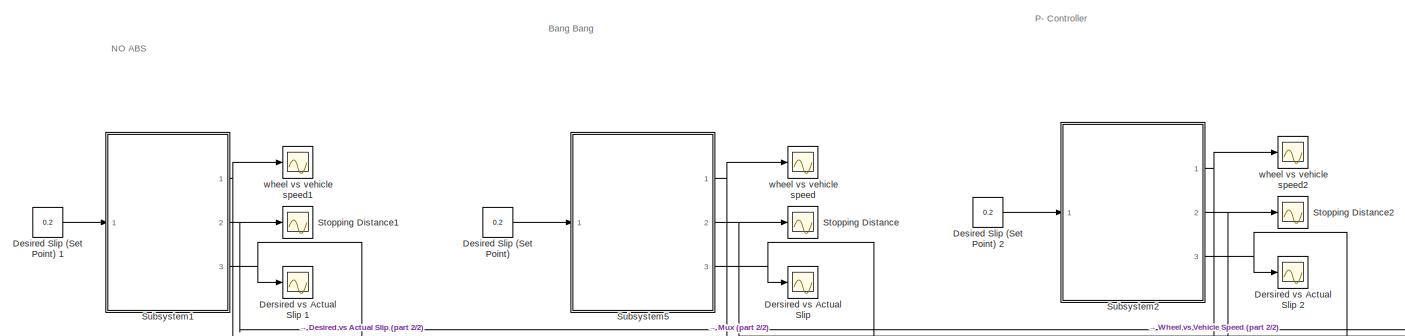
[diagram: root canvas - part 1/2, top left region]
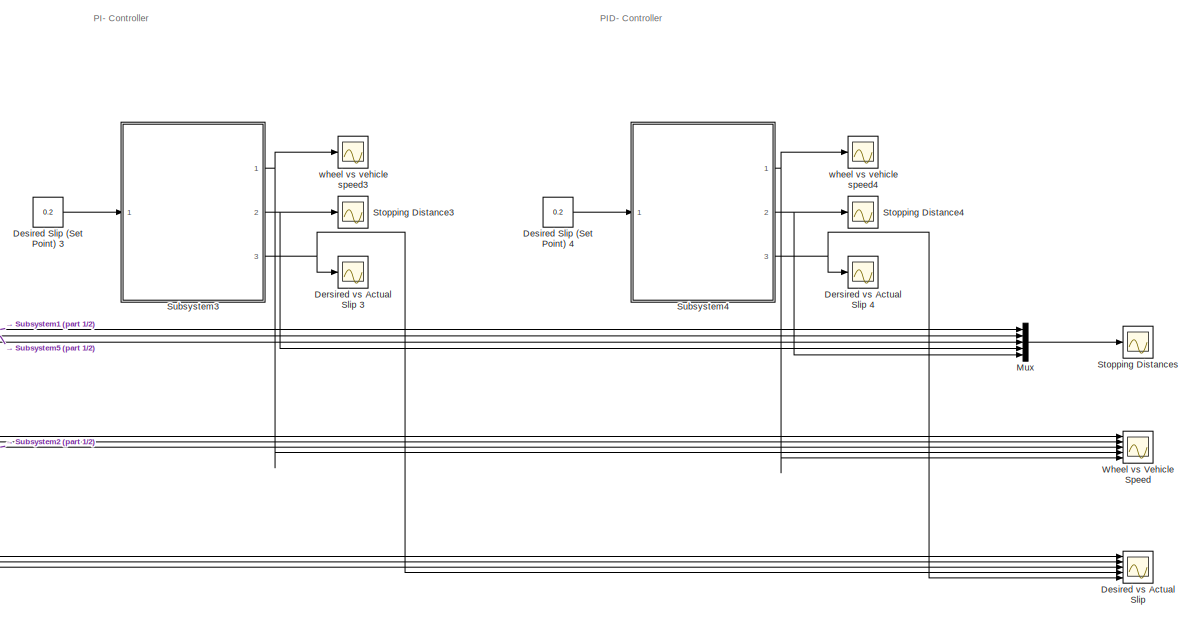
[diagram: root canvas - part 2/2, right side, full height]
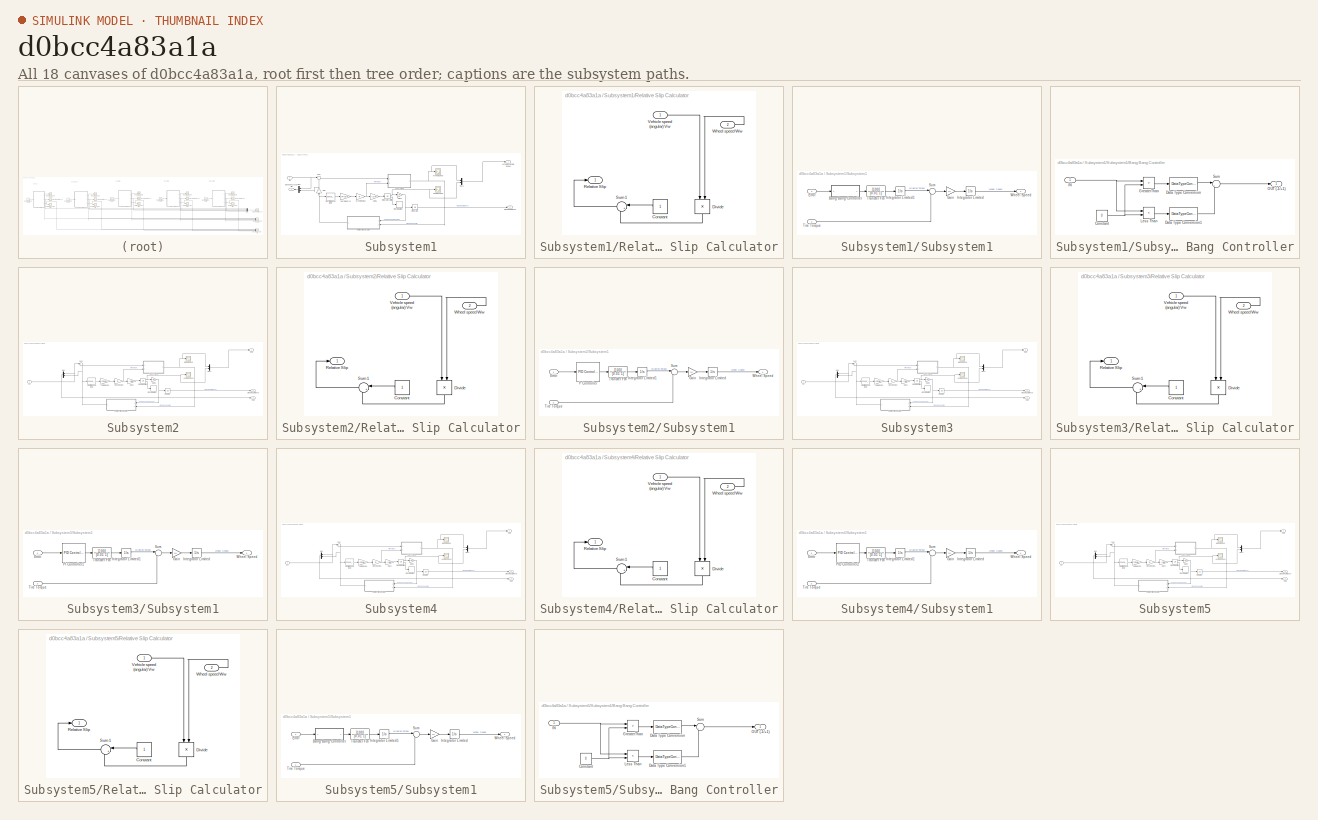
[diagram: thumbnail index - all 18 canvases of the model, root first then tree order]
MODEL slx_d0bcc4a83a1a
KIND model
CONFIG AbsTol = auto
CONFIG EnableMultiTasking = off
CONFIG FixedStep = auto
CONFIG MaxStep = auto
CONFIG MinStep = auto
CONFIG RelTol = 1e-3
CONFIG SampleTimeConstraint = Unconstrained
CONFIG Solver = ode23t
CONFIG SolverName = ode23t
CONFIG StartTime = 0.0
CONFIG StopTime = 20
BLOCK [Scope] Dersired vs Actual Slip 
  Floating = off
  NumInputPorts = 1
  Ports = [1]
  ScopeSpecificationString = Simulink.scopes.TimeScopeBlockCfg('CurrentConfiguration', extmgr.ConfigurationSet(extmgr.Configuration('Core','General UI',true),extmgr.Configuration('Core','Source UI',true),extmgr.Configuration('Sources','WiredSimulink',true,'DataLoggingVariableName','ScopeData1'),extmgr.Configuration('Visuals','Time Domain',true,'SerializedDisplays',{struct('MinYLimReal','-0.125','MaxYLimReal','1.125','YLabelRe...<+1446ch>
BLOCK [Scope] Dersired vs Actual Slip 1
  Floating = off
  NumInputPorts = 1
  Ports = [1]
  ScopeSpecificationString = Simulink.scopes.TimeScopeBlockCfg('CurrentConfiguration', extmgr.ConfigurationSet(extmgr.Configuration('Core','General UI',true),extmgr.Configuration('Core','Source UI',true),extmgr.Configuration('Sources','WiredSimulink',true,'DataLoggingVariableName','ScopeData1'),extmgr.Configuration('Visuals','Time Domain',true,'SerializedDisplays',{struct('MinYLimReal','-0.025','MaxYLimReal','0.225','YLabelRe...<+1446ch>
BLOCK [Scope] Dersired vs Actual Slip 2
  Floating = off
  NumInputPorts = 1
  Ports = [1]
  ScopeSpecificationString = Simulink.scopes.TimeScopeBlockCfg('CurrentConfiguration', extmgr.ConfigurationSet(extmgr.Configuration('Core','General UI',true),extmgr.Configuration('Core','Source UI',true),extmgr.Configuration('Sources','WiredSimulink',true,'DataLoggingVariableName','ScopeData4'),extmgr.Configuration('Visuals','Time Domain',true,'SerializedDisplays',{struct('MinYLimReal','-1.26905','MaxYLimReal','1.25212','YLab...<+1458ch>
BLOCK [Scope] Dersired vs Actual Slip 3
  Floating = off
  NumInputPorts = 1
  Ports = [1]
  ScopeSpecificationString = Simulink.scopes.TimeScopeBlockCfg('CurrentConfiguration', extmgr.ConfigurationSet(extmgr.Configuration('Core','General UI',true),extmgr.Configuration('Core','Source UI',true),extmgr.Configuration('Sources','WiredSimulink',true,'DataLoggingVariableName','ScopeData7'),extmgr.Configuration('Visuals','Time Domain',true,'SerializedDisplays',{struct('MinYLimReal','-0.06837','MaxYLimReal','0.61535','YLab...<+1458ch>
BLOCK [Scope] Dersired vs Actual Slip 4
  Floating = off
  NumInputPorts = 1
  Ports = [1]
  ScopeSpecificationString = Simulink.scopes.TimeScopeBlockCfg('CurrentConfiguration', extmgr.ConfigurationSet(extmgr.Configuration('Core','General UI',true),extmgr.Configuration('Core','Source UI',true),extmgr.Configuration('Sources','WiredSimulink',true,'DataLoggingVariableName','ScopeData10'),extmgr.Configuration('Visuals','Time Domain',true,'SerializedDisplays',{struct('MinYLimReal','-0.06837','MaxYLimReal','0.61535','YLa...<+1459ch>
BLOCK [Constant] Desired Slip (Set Point) 
  Value = 0.2
BLOCK [Constant] Desired Slip (Set Point) 1
  Value = 0.2
BLOCK [Constant] Desired Slip (Set Point) 2
  Value = 0.2
BLOCK [Constant] Desired Slip (Set Point) 3
  Value = 0.2
BLOCK [Constant] Desired Slip (Set Point) 4
  Value = 0.2
BLOCK [Scope] Desired vs Actual Slip
  Floating = off
  NumInputPorts = 5
  Ports = [5]
  ScopeSpecificationString = Simulink.scopes.TimeScopeBlockCfg('CurrentConfiguration', extmgr.ConfigurationSet(extmgr.Configuration('Core','General UI',true),extmgr.Configuration('Core','Source UI',true),extmgr.Configuration('Sources','WiredSimulink',true,'DataLoggingVariableName','ScopeData15'),extmgr.Configuration('Visuals','Time Domain',true,'SerializedDisplays',{struct('MinYLimReal','-0.025','MaxYLimReal','0.225','YLabelR...<+6258ch>
BLOCK [Mux] Mux
  DisplayOption = bar
  Inputs = 5
  Ports = [5, 1]
BLOCK [Scope] Stopping Distance
  Floating = off
  NumInputPorts = 1
  Ports = [1]
  ScopeSpecificationString = Simulink.scopes.TimeScopeBlockCfg('CurrentConfiguration', extmgr.ConfigurationSet(extmgr.Configuration('Core','General UI',true),extmgr.Configuration('Core','Source UI',true),extmgr.Configuration('Sources','WiredSimulink',true),extmgr.Configuration('Visuals','Time Domain',true,'SerializedDisplays',{struct('MinYLimReal','-37.79808','MaxYLimReal','340.18268','YLabelReal','','MinYLimMag','0.00000','M...<+1415ch>
BLOCK [Scope] Stopping Distance1
  Floating = off
  NumInputPorts = 1
  Ports = [1]
  ScopeSpecificationString = Simulink.scopes.TimeScopeBlockCfg('CurrentConfiguration', extmgr.ConfigurationSet(extmgr.Configuration('Core','General UI',true),extmgr.Configuration('Core','Source UI',true),extmgr.Configuration('Sources','WiredSimulink',true,'DataLoggingVariableName','ScopeData2'),extmgr.Configuration('Visuals','Time Domain',true,'SerializedDisplays',{struct('MinYLimReal','-558.91159','MaxYLimReal','5030.20434',...<+1473ch>
BLOCK [Scope] Stopping Distance2
  Floating = off
  NumInputPorts = 1
  Ports = [1]
  ScopeSpecificationString = Simulink.scopes.TimeScopeBlockCfg('CurrentConfiguration', extmgr.ConfigurationSet(extmgr.Configuration('Core','General UI',true),extmgr.Configuration('Core','Source UI',true),extmgr.Configuration('Sources','WiredSimulink',true,'DataLoggingVariableName','ScopeData5'),extmgr.Configuration('Visuals','Time Domain',true,'SerializedDisplays',{struct('MinYLimReal','-37.79808','MaxYLimReal','340.18268','Y...<+1454ch>
BLOCK [Scope] Stopping Distance3
  Floating = off
  NumInputPorts = 1
  Ports = [1]
  ScopeSpecificationString = Simulink.scopes.TimeScopeBlockCfg('CurrentConfiguration', extmgr.ConfigurationSet(extmgr.Configuration('Core','General UI',true),extmgr.Configuration('Core','Source UI',true),extmgr.Configuration('Sources','WiredSimulink',true,'DataLoggingVariableName','ScopeData8'),extmgr.Configuration('Visuals','Time Domain',true,'SerializedDisplays',{struct('MinYLimReal','-37.79808','MaxYLimReal','340.18268','Y...<+1454ch>
BLOCK [Scope] Stopping Distance4
  Floating = off
  NumInputPorts = 1
  Ports = [1]
  ScopeSpecificationString = Simulink.scopes.TimeScopeBlockCfg('CurrentConfiguration', extmgr.ConfigurationSet(extmgr.Configuration('Core','General UI',true),extmgr.Configuration('Core','Source UI',true),extmgr.Configuration('Sources','WiredSimulink',true,'DataLoggingVariableName','ScopeData11'),extmgr.Configuration('Visuals','Time Domain',true,'SerializedDisplays',{struct('MinYLimReal','-37.79808','MaxYLimReal','340.18268','...<+1455ch>
BLOCK [Scope] Stopping Distances
  Floating = off
  NumInputPorts = 1
  Ports = [1]
  ScopeSpecificationString = Simulink.scopes.TimeScopeBlockCfg('CurrentConfiguration', extmgr.ConfigurationSet(extmgr.Configuration('Core','General UI',true),extmgr.Configuration('Core','Source UI',true),extmgr.Configuration('Sources','WiredSimulink',true,'DataLoggingVariableName','ScopeData13'),extmgr.Configuration('Visuals','Time Domain',true,'SerializedDisplays',{struct('MinYLimReal','-557.93407','MaxYLimReal','5021.40662'...<+1642ch>
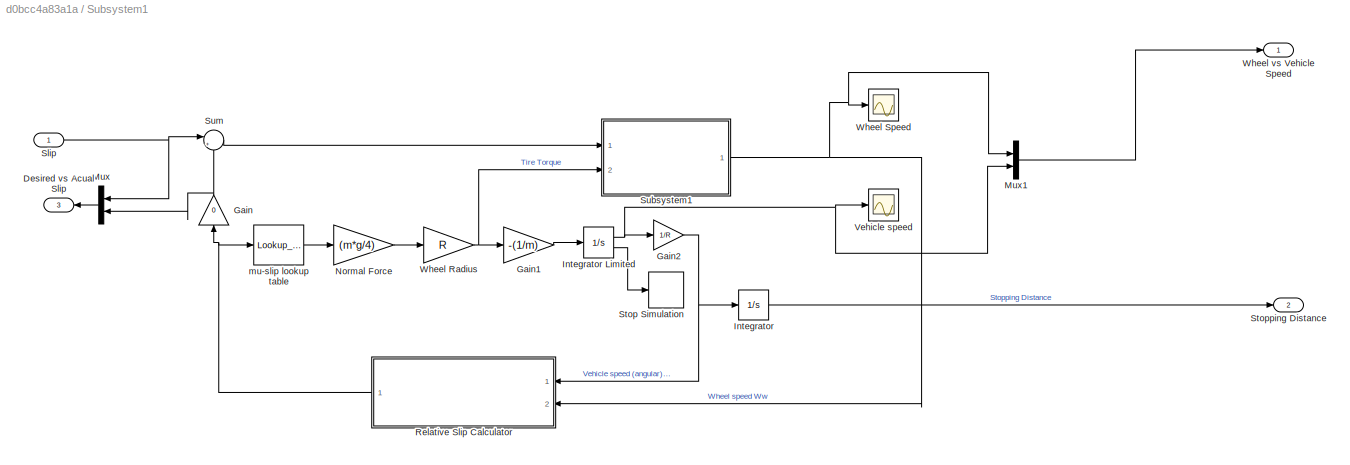
BLOCK [SubSystem] Subsystem1
  Ports = [1, 3]
  RequestExecContextInheritance = off
BLOCK [Outport] Subsystem1/Desired vs Acual Slip
  IconDisplay = Port number
  Port = 3
BLOCK [Gain] Subsystem1/Gain
  Gain = 0
  OutDataTypeStr = Inherit: Inherit via internal rule
  ParamDataTypeStr = Inherit: Inherit via internal rule
  SaturateOnIntegerOverflow = off
BLOCK [Gain] Subsystem1/Gain1
  Gain = -(1/m)
  OutDataTypeStr = Inherit: Inherit via internal rule
  ParamDataTypeStr = Inherit: Inherit via internal rule
  SaturateOnIntegerOverflow = off
BLOCK [Gain] Subsystem1/Gain2
  Gain = 1/R
  OutDataTypeStr = Inherit: Inherit via internal rule
  ParamDataTypeStr = Inherit: Inherit via internal rule
  SaturateOnIntegerOverflow = off
BLOCK [Integrator] Subsystem1/Integrator
  Ports = [1, 1]
BLOCK [Integrator] Subsystem1/Integrator Limited
  InitialCondition = v0
  LimitOutput = on
  LowerSaturationLimit = 0
  Ports = [1, 2]
  ShowSaturationPort = on
  UpperSaturationLimit = 1000
BLOCK [Mux] Subsystem1/Mux
  DisplayOption = bar
  Inputs = 2
  Ports = [2, 1]
BLOCK [Mux] Subsystem1/Mux1
  DisplayOption = bar
  Inputs = 2
  Ports = [2, 1]
BLOCK [Gain] Subsystem1/Normal Force
  Gain = (m*g/4)
  OutDataTypeStr = Inherit: Inherit via internal rule
  ParamDataTypeStr = Inherit: Inherit via internal rule
  SaturateOnIntegerOverflow = off
BLOCK [SubSystem] Subsystem1/Relative Slip Calculator
  Ports = [2, 1]
  RequestExecContextInheritance = off
BLOCK [Constant] Subsystem1/Relative Slip Calculator/Constant
BLOCK [Product] Subsystem1/Relative Slip Calculator/Divide
  InputSameDT = off
  Inputs = /*
  OutDataTypeStr = Inherit: Inherit via internal rule
  Ports = [2, 1]
  RndMeth = Floor
  SaturateOnIntegerOverflow = off
BLOCK [Outport] Subsystem1/Relative Slip Calculator/Relative Slip
  IconDisplay = Port number
BLOCK [Sum] Subsystem1/Relative Slip Calculator/Sum1
  IconShape = round
  InputSameDT = off
  Inputs = |+-
  OutDataTypeStr = Inherit: Inherit via internal rule
  Ports = [2, 1]
  SaturateOnIntegerOverflow = off
BLOCK [Inport] Subsystem1/Relative Slip Calculator/Vehicle speed (angular) Vw
  IconDisplay = Port number
BLOCK [Inport] Subsystem1/Relative Slip Calculator/Wheel speed Ww
  IconDisplay = Port number
  Port = 2
BLOCK [Inport] Subsystem1/Slip
  IconDisplay = Port number
BLOCK [Stop] Subsystem1/Stop Simulation
BLOCK [Outport] Subsystem1/Stopping Distance
  IconDisplay = Port number
  Port = 2
BLOCK [SubSystem] Subsystem1/Subsystem1
  Ports = [2, 1]
  RequestExecContextInheritance = off
BLOCK [SubSystem] Subsystem1/Subsystem1/Bang Bang Controller
  Ports = [1, 1]
  RequestExecContextInheritance = off
BLOCK [Constant] Subsystem1/Subsystem1/Bang Bang Controller/Constant
  Value = 0
BLOCK [DataTypeConversion] Subsystem1/Subsystem1/Bang Bang Controller/Data Type Conversion
  OutDataTypeStr = double
  SaturateOnIntegerOverflow = off
BLOCK [DataTypeConversion] Subsystem1/Subsystem1/Bang Bang Controller/Data Type Conversion1
  OutDataTypeStr = double
  SaturateOnIntegerOverflow = off
BLOCK [RelationalOperator] Subsystem1/Subsystem1/Bang Bang Controller/GreaterThan
  InputSameDT = off
  Operator = >
  OutDataTypeStr = boolean
  Ports = [2, 1]
  RndMeth = Simplest
BLOCK [Inport] Subsystem1/Subsystem1/Bang Bang Controller/IN
  IconDisplay = Port number
BLOCK [RelationalOperator] Subsystem1/Subsystem1/Bang Bang Controller/Less Than
  InputSameDT = off
  Operator = <
  OutDataTypeStr = boolean
  Ports = [2, 1]
  RndMeth = Simplest
BLOCK [Outport] Subsystem1/Subsystem1/Bang Bang Controller/OUT (-1//+1)
  IconDisplay = Port number
BLOCK [Sum] Subsystem1/Subsystem1/Bang Bang Controller/Sum
  IconShape = round
  InputSameDT = off
  Inputs = |+-
  OutDataTypeStr = Inherit: Inherit via internal rule
  Ports = [2, 1]
  SaturateOnIntegerOverflow = off
BLOCK [Inport] Subsystem1/Subsystem1/Error
  IconDisplay = Port number
BLOCK [Gain] Subsystem1/Subsystem1/Gain
  Gain = 1/I
  OutDataTypeStr = Inherit: Inherit via internal rule
  ParamDataTypeStr = Inherit: Inherit via internal rule
  SaturateOnIntegerOverflow = off
BLOCK [Integrator] Subsystem1/Subsystem1/Integrator Limited
  InitialCondition = v0/R
  LimitOutput = on
  LowerSaturationLimit = 0
  Ports = [1, 1]
  UpperSaturationLimit = 1000
BLOCK [Integrator] Subsystem1/Subsystem1/Integrator Limited1
  LimitOutput = on
  LowerSaturationLimit = 0
  Ports = [1, 1]
  UpperSaturationLimit = 1500
BLOCK [Sum] Subsystem1/Subsystem1/Sum
  IconShape = round
  InputSameDT = off
  Inputs = |-+
  OutDataTypeStr = Inherit: Inherit via internal rule
  Ports = [2, 1]
  SaturateOnIntegerOverflow = off
BLOCK [Inport] Subsystem1/Subsystem1/Tire Torque
  IconDisplay = Port number
  Port = 2
BLOCK [TransferFcn] Subsystem1/Subsystem1/Transfer Fcn
  Denominator = [0.01 1]
  Numerator = [100]
BLOCK [Outport] Subsystem1/Subsystem1/Wheel Speed
  IconDisplay = Port number
BLOCK [Sum] Subsystem1/Sum
  IconShape = round
  InputSameDT = off
  Inputs = |+-
  OutDataTypeStr = Inherit: Inherit via internal rule
  Ports = [2, 1]
  SaturateOnIntegerOverflow = off
BLOCK [Scope] Subsystem1/Vehicle speed
  Floating = off
  NumInputPorts = 1
  Ports = [1]
  ScopeSpecificationString = Simulink.scopes.TimeScopeBlockCfg('CurrentConfiguration', extmgr.ConfigurationSet(extmgr.Configuration('Core','General UI',true),extmgr.Configuration('Core','Source UI',true),extmgr.Configuration('Sources','WiredSimulink',true,'DataLoggingVariableName','ScopeData3'),extmgr.Configuration('Visuals','Time Domain',true,'SerializedDisplays',{struct('MinYLimReal','-2.1429','MaxYLimReal','49.12699','YLab...<+1421ch>  <repeated x5 — deduplicated; at blocks: Vehicle speed>
BLOCK [Gain] Subsystem1/Wheel Radius
  Gain = R
  OutDataTypeStr = Inherit: Inherit via internal rule
  ParamDataTypeStr = Inherit: Inherit via internal rule
  SaturateOnIntegerOverflow = off
BLOCK [Scope] Subsystem1/Wheel Speed
  Floating = off
  NumInputPorts = 1
  Ports = [1]
  ScopeSpecificationString = Simulink.scopes.TimeScopeBlockCfg('CurrentConfiguration', extmgr.ConfigurationSet(extmgr.Configuration('Core','General UI',true),extmgr.Configuration('Core','Source UI',true),extmgr.Configuration('Sources','WiredSimulink',true,'DataLoggingVariableName','ScopeData2'),extmgr.Configuration('Visuals','Time Domain',true,'SerializedDisplays',{struct('MinYLimReal','-4.4','MaxYLimReal','39.6','YLabelReal'...<+1537ch>  <repeated x5 — deduplicated; at blocks: Wheel Speed>
BLOCK [Outport] Subsystem1/Wheel vs Vehicle Speed
  IconDisplay = Port number
BLOCK [Lookup_n-D] Subsystem1/mu-slip lookup table
  BreakpointsForDimension1 = [0,0.05,0.1,0.15,0.2,0.25,0.3,0.35,0.4,0.45,0.5,0.55,0.60,0.65,0.70,0.75,0.80,0.85,0.90,0.95,1]
  InternalRulePriority = Speed
  NumberOfTableDimensions = 1
  Ports = [1, 1]
  RndMeth = Simplest
  Table = [0,0.4,0.8,0.97,1,0.98,0.96,0.94,0.92,0.9,0.88,0.855,0.83,0.81,0.79,0.77,0.75,0.73,0.72,0.71,0.7]
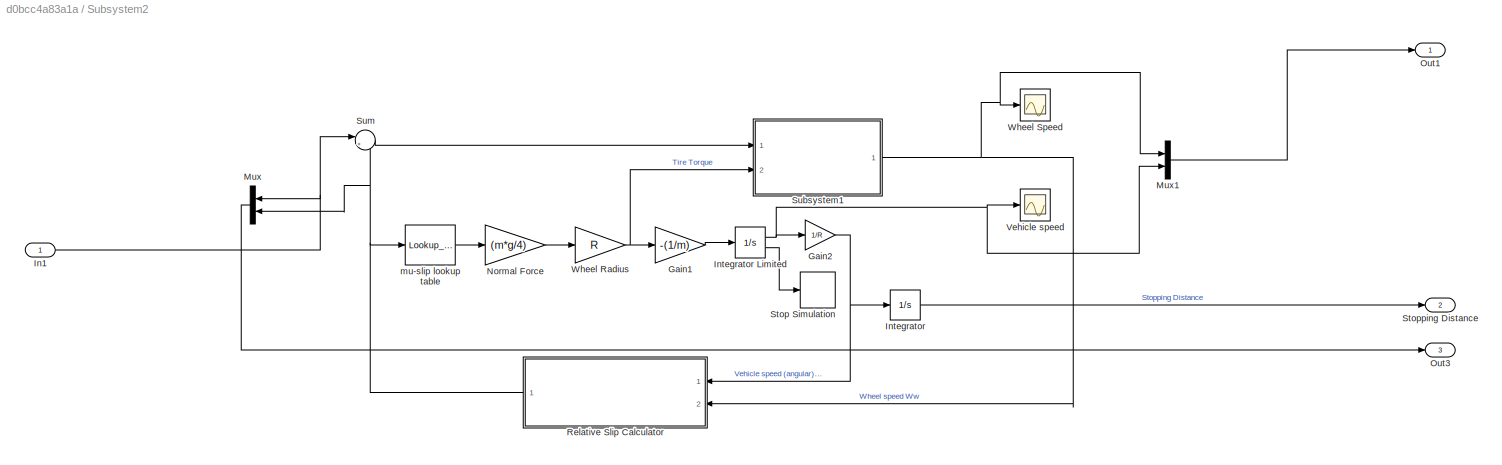
BLOCK [SubSystem] Subsystem2
  Ports = [1, 3]
  RequestExecContextInheritance = off
BLOCK [Gain] Subsystem2/Gain1
  Gain = -(1/m)
  OutDataTypeStr = Inherit: Inherit via internal rule
  ParamDataTypeStr = Inherit: Inherit via internal rule
  SaturateOnIntegerOverflow = off
BLOCK [Gain] Subsystem2/Gain2
  Gain = 1/R
  OutDataTypeStr = Inherit: Inherit via internal rule
  ParamDataTypeStr = Inherit: Inherit via internal rule
  SaturateOnIntegerOverflow = off
BLOCK [Inport] Subsystem2/In1
  IconDisplay = Port number
BLOCK [Integrator] Subsystem2/Integrator
  Ports = [1, 1]
BLOCK [Integrator] Subsystem2/Integrator Limited
  InitialCondition = v0
  LimitOutput = on
  LowerSaturationLimit = 0
  Ports = [1, 2]
  ShowSaturationPort = on
  UpperSaturationLimit = 1000
BLOCK [Mux] Subsystem2/Mux
  DisplayOption = bar
  Inputs = 2
  Ports = [2, 1]
BLOCK [Mux] Subsystem2/Mux1
  DisplayOption = bar
  Inputs = 2
  Ports = [2, 1]
BLOCK [Gain] Subsystem2/Normal Force
  Gain = (m*g/4)
  OutDataTypeStr = Inherit: Inherit via internal rule
  ParamDataTypeStr = Inherit: Inherit via internal rule
  SaturateOnIntegerOverflow = off
BLOCK [Outport] Subsystem2/Out1
  IconDisplay = Port number
BLOCK [Outport] Subsystem2/Out3
  IconDisplay = Port number
  Port = 3
BLOCK [SubSystem] Subsystem2/Relative Slip Calculator
  Ports = [2, 1]
  RequestExecContextInheritance = off
BLOCK [Constant] Subsystem2/Relative Slip Calculator/Constant
BLOCK [Product] Subsystem2/Relative Slip Calculator/Divide
  InputSameDT = off
  Inputs = /*
  OutDataTypeStr = Inherit: Inherit via internal rule
  Ports = [2, 1]
  RndMeth = Floor
  SaturateOnIntegerOverflow = off
BLOCK [Outport] Subsystem2/Relative Slip Calculator/Relative Slip
  IconDisplay = Port number
BLOCK [Sum] Subsystem2/Relative Slip Calculator/Sum1
  IconShape = round
  InputSameDT = off
  Inputs = |+-
  OutDataTypeStr = Inherit: Inherit via internal rule
  Ports = [2, 1]
  SaturateOnIntegerOverflow = off
BLOCK [Inport] Subsystem2/Relative Slip Calculator/Vehicle speed (angular) Vw
  IconDisplay = Port number
BLOCK [Inport] Subsystem2/Relative Slip Calculator/Wheel speed Ww
  IconDisplay = Port number
  Port = 2
BLOCK [Stop] Subsystem2/Stop Simulation
BLOCK [Outport] Subsystem2/Stopping Distance
  IconDisplay = Port number
  Port = 2
BLOCK [SubSystem] Subsystem2/Subsystem1
  Ports = [2, 1]
  RequestExecContextInheritance = off
BLOCK [Inport] Subsystem2/Subsystem1/Error
  IconDisplay = Port number
BLOCK [Gain] Subsystem2/Subsystem1/Gain
  Gain = 1/I
  OutDataTypeStr = Inherit: Inherit via internal rule
  ParamDataTypeStr = Inherit: Inherit via internal rule
  SaturateOnIntegerOverflow = off
BLOCK [Integrator] Subsystem2/Subsystem1/Integrator Limited
  InitialCondition = v0/R
  LimitOutput = on
  LowerSaturationLimit = 0
  Ports = [1, 1]
  UpperSaturationLimit = 1000
BLOCK [Integrator] Subsystem2/Subsystem1/Integrator Limited1
  LimitOutput = on
  LowerSaturationLimit = 0
  Ports = [1, 1]
  UpperSaturationLimit = 1500
BLOCK [Reference] Subsystem2/Subsystem1/P Controller  REF=simulink/Continuous/PID Controller
  Ports = [1, 1]
  SourceBlock = simulink/Continuous/PID Controller
  SourceProductBaseCode = SL
  SourceProductName = Simulink
  SourceType = PID 1dof
BLOCK [Sum] Subsystem2/Subsystem1/Sum
  IconShape = round
  InputSameDT = off
  Inputs = |-+
  OutDataTypeStr = Inherit: Inherit via internal rule
  Ports = [2, 1]
  SaturateOnIntegerOverflow = off
BLOCK [Inport] Subsystem2/Subsystem1/Tire Torque
  IconDisplay = Port number
  Port = 2
BLOCK [TransferFcn] Subsystem2/Subsystem1/Transfer Fcn
  Denominator = [0.01 1]
  Numerator = [100]
BLOCK [Outport] Subsystem2/Subsystem1/Wheel Speed
  IconDisplay = Port number
BLOCK [Sum] Subsystem2/Sum
  IconShape = round
  InputSameDT = off
  Inputs = |+-
  OutDataTypeStr = Inherit: Inherit via internal rule
  Ports = [2, 1]
  SaturateOnIntegerOverflow = off
BLOCK [Scope] Subsystem2/Vehicle speed
  Floating = off
  NumInputPorts = 1
  Ports = [1]
BLOCK [Gain] Subsystem2/Wheel Radius
  Gain = R
  OutDataTypeStr = Inherit: Inherit via internal rule
  ParamDataTypeStr = Inherit: Inherit via internal rule
  SaturateOnIntegerOverflow = off
BLOCK [Scope] Subsystem2/Wheel Speed
  Floating = off
  NumInputPorts = 1
  Ports = [1]
BLOCK [Lookup_n-D] Subsystem2/mu-slip lookup table
  BreakpointsForDimension1 = [0,0.05,0.1,0.15,0.2,0.25,0.3,0.35,0.4,0.45,0.5,0.55,0.60,0.65,0.70,0.75,0.80,0.85,0.90,0.95,1]
  InternalRulePriority = Speed
  NumberOfTableDimensions = 1
  Ports = [1, 1]
  RndMeth = Simplest
  Table = [0,0.4,0.8,0.97,1,0.98,0.96,0.94,0.92,0.9,0.88,0.855,0.83,0.81,0.79,0.77,0.75,0.73,0.72,0.71,0.7]
BLOCK [SubSystem] Subsystem3
  Ports = [1, 3]
  RequestExecContextInheritance = off
BLOCK [Gain] Subsystem3/Gain1
  Gain = -(1/m)
  OutDataTypeStr = Inherit: Inherit via internal rule
  ParamDataTypeStr = Inherit: Inherit via internal rule
  SaturateOnIntegerOverflow = off
BLOCK [Gain] Subsystem3/Gain2
  Gain = 1/R
  OutDataTypeStr = Inherit: Inherit via internal rule
  ParamDataTypeStr = Inherit: Inherit via internal rule
  SaturateOnIntegerOverflow = off
BLOCK [Inport] Subsystem3/In1
  IconDisplay = Port number
BLOCK [Integrator] Subsystem3/Integrator
  Ports = [1, 1]
BLOCK [Integrator] Subsystem3/Integrator Limited
  InitialCondition = v0
  LimitOutput = on
  LowerSaturationLimit = 0
  Ports = [1, 2]
  ShowSaturationPort = on
  UpperSaturationLimit = 1000
BLOCK [Mux] Subsystem3/Mux
  DisplayOption = bar
  Inputs = 2
  Ports = [2, 1]
BLOCK [Mux] Subsystem3/Mux1
  DisplayOption = bar
  Inputs = 2
  Ports = [2, 1]
BLOCK [Gain] Subsystem3/Normal Force
  Gain = (m*g/4)
  OutDataTypeStr = Inherit: Inherit via internal rule
  ParamDataTypeStr = Inherit: Inherit via internal rule
  SaturateOnIntegerOverflow = off
BLOCK [Outport] Subsystem3/Out1
  IconDisplay = Port number
BLOCK [Outport] Subsystem3/Out3
  IconDisplay = Port number
  Port = 3
BLOCK [SubSystem] Subsystem3/Relative Slip Calculator
  Ports = [2, 1]
  RequestExecContextInheritance = off
BLOCK [Constant] Subsystem3/Relative Slip Calculator/Constant
BLOCK [Product] Subsystem3/Relative Slip Calculator/Divide
  InputSameDT = off
  Inputs = /*
  OutDataTypeStr = Inherit: Inherit via internal rule
  Ports = [2, 1]
  RndMeth = Floor
  SaturateOnIntegerOverflow = off
BLOCK [Outport] Subsystem3/Relative Slip Calculator/Relative Slip
  IconDisplay = Port number
BLOCK [Sum] Subsystem3/Relative Slip Calculator/Sum1
  IconShape = round
  InputSameDT = off
  Inputs = |+-
  OutDataTypeStr = Inherit: Inherit via internal rule
  Ports = [2, 1]
  SaturateOnIntegerOverflow = off
BLOCK [Inport] Subsystem3/Relative Slip Calculator/Vehicle speed (angular) Vw
  IconDisplay = Port number
BLOCK [Inport] Subsystem3/Relative Slip Calculator/Wheel speed Ww
  IconDisplay = Port number
  Port = 2
BLOCK [Stop] Subsystem3/Stop Simulation
BLOCK [Outport] Subsystem3/Stopping Distance
  IconDisplay = Port number
  Port = 2
BLOCK [SubSystem] Subsystem3/Subsystem1
  Ports = [2, 1]
  RequestExecContextInheritance = off
BLOCK [Inport] Subsystem3/Subsystem1/Error
  IconDisplay = Port number
BLOCK [Gain] Subsystem3/Subsystem1/Gain
  Gain = 1/I
  OutDataTypeStr = Inherit: Inherit via internal rule
  ParamDataTypeStr = Inherit: Inherit via internal rule
  SaturateOnIntegerOverflow = off
BLOCK [Integrator] Subsystem3/Subsystem1/Integrator Limited
  InitialCondition = v0/R
  LimitOutput = on
  LowerSaturationLimit = 0
  Ports = [1, 1]
  UpperSaturationLimit = 1000
BLOCK [Integrator] Subsystem3/Subsystem1/Integrator Limited1
  LimitOutput = on
  LowerSaturationLimit = 0
  Ports = [1, 1]
  UpperSaturationLimit = 1500
BLOCK [Reference] Subsystem3/Subsystem1/PI Controller1  REF=simulink/Continuous/PID Controller
  Ports = [1, 1]
  SourceBlock = simulink/Continuous/PID Controller
  SourceProductBaseCode = SL
  SourceProductName = Simulink
  SourceType = PID 1dof
BLOCK [Sum] Subsystem3/Subsystem1/Sum
  IconShape = round
  InputSameDT = off
  Inputs = |-+
  OutDataTypeStr = Inherit: Inherit via internal rule
  Ports = [2, 1]
  SaturateOnIntegerOverflow = off
BLOCK [Inport] Subsystem3/Subsystem1/Tire Torque
  IconDisplay = Port number
  Port = 2
BLOCK [TransferFcn] Subsystem3/Subsystem1/Transfer Fcn
  Denominator = [0.01 1]
  Numerator = [100]
BLOCK [Outport] Subsystem3/Subsystem1/Wheel Speed
  IconDisplay = Port number
BLOCK [Sum] Subsystem3/Sum
  IconShape = round
  InputSameDT = off
  Inputs = |+-
  OutDataTypeStr = Inherit: Inherit via internal rule
  Ports = [2, 1]
  SaturateOnIntegerOverflow = off
BLOCK [Scope] Subsystem3/Vehicle speed
  Floating = off
  NumInputPorts = 1
  Ports = [1]
BLOCK [Gain] Subsystem3/Wheel Radius
  Gain = R
  OutDataTypeStr = Inherit: Inherit via internal rule
  ParamDataTypeStr = Inherit: Inherit via internal rule
  SaturateOnIntegerOverflow = off
BLOCK [Scope] Subsystem3/Wheel Speed
  Floating = off
  NumInputPorts = 1
  Ports = [1]
BLOCK [Lookup_n-D] Subsystem3/mu-slip lookup table
  BreakpointsForDimension1 = [0,0.05,0.1,0.15,0.2,0.25,0.3,0.35,0.4,0.45,0.5,0.55,0.60,0.65,0.70,0.75,0.80,0.85,0.90,0.95,1]
  InternalRulePriority = Speed
  NumberOfTableDimensions = 1
  Ports = [1, 1]
  RndMeth = Simplest
  Table = [0,0.4,0.8,0.97,1,0.98,0.96,0.94,0.92,0.9,0.88,0.855,0.83,0.81,0.79,0.77,0.75,0.73,0.72,0.71,0.7]
BLOCK [SubSystem] Subsystem4
  Ports = [1, 3]
  RequestExecContextInheritance = off
BLOCK [Gain] Subsystem4/Gain1
  Gain = -(1/m)
  OutDataTypeStr = Inherit: Inherit via internal rule
  ParamDataTypeStr = Inherit: Inherit via internal rule
  SaturateOnIntegerOverflow = off
BLOCK [Gain] Subsystem4/Gain2
  Gain = 1/R
  OutDataTypeStr = Inherit: Inherit via internal rule
  ParamDataTypeStr = Inherit: Inherit via internal rule
  SaturateOnIntegerOverflow = off
BLOCK [Inport] Subsystem4/In1
  IconDisplay = Port number
BLOCK [Integrator] Subsystem4/Integrator
  Ports = [1, 1]
BLOCK [Integrator] Subsystem4/Integrator Limited
  InitialCondition = v0
  LimitOutput = on
  LowerSaturationLimit = 0
  Ports = [1, 2]
  ShowSaturationPort = on
  UpperSaturationLimit = 1000
BLOCK [Mux] Subsystem4/Mux
  DisplayOption = bar
  Inputs = 2
  Ports = [2, 1]
BLOCK [Mux] Subsystem4/Mux1
  DisplayOption = bar
  Inputs = 2
  Ports = [2, 1]
BLOCK [Gain] Subsystem4/Normal Force
  Gain = (m*g/4)
  OutDataTypeStr = Inherit: Inherit via internal rule
  ParamDataTypeStr = Inherit: Inherit via internal rule
  SaturateOnIntegerOverflow = off
BLOCK [Outport] Subsystem4/Out1
  IconDisplay = Port number
BLOCK [Outport] Subsystem4/Out3
  IconDisplay = Port number
  Port = 3
BLOCK [SubSystem] Subsystem4/Relative Slip Calculator
  Ports = [2, 1]
  RequestExecContextInheritance = off
BLOCK [Constant] Subsystem4/Relative Slip Calculator/Constant
BLOCK [Product] Subsystem4/Relative Slip Calculator/Divide
  InputSameDT = off
  Inputs = /*
  OutDataTypeStr = Inherit: Inherit via internal rule
  Ports = [2, 1]
  RndMeth = Floor
  SaturateOnIntegerOverflow = off
BLOCK [Outport] Subsystem4/Relative Slip Calculator/Relative Slip
  IconDisplay = Port number
BLOCK [Sum] Subsystem4/Relative Slip Calculator/Sum1
  IconShape = round
  InputSameDT = off
  Inputs = |+-
  OutDataTypeStr = Inherit: Inherit via internal rule
  Ports = [2, 1]
  SaturateOnIntegerOverflow = off
BLOCK [Inport] Subsystem4/Relative Slip Calculator/Vehicle speed (angular) Vw
  IconDisplay = Port number
BLOCK [Inport] Subsystem4/Relative Slip Calculator/Wheel speed Ww
  IconDisplay = Port number
  Port = 2
BLOCK [Stop] Subsystem4/Stop Simulation
BLOCK [Outport] Subsystem4/Stopping Distance
  IconDisplay = Port number
  Port = 2
BLOCK [SubSystem] Subsystem4/Subsystem1
  Ports = [2, 1]
  RequestExecContextInheritance = off
BLOCK [Inport] Subsystem4/Subsystem1/Error
  IconDisplay = Port number
BLOCK [Gain] Subsystem4/Subsystem1/Gain
  Gain = 1/I
  OutDataTypeStr = Inherit: Inherit via internal rule
  ParamDataTypeStr = Inherit: Inherit via internal rule
  SaturateOnIntegerOverflow = off
BLOCK [Integrator] Subsystem4/Subsystem1/Integrator Limited
  InitialCondition = v0/R
  LimitOutput = on
  LowerSaturationLimit = 0
  Ports = [1, 1]
  UpperSaturationLimit = 1000
BLOCK [Integrator] Subsystem4/Subsystem1/Integrator Limited1
  LimitOutput = on
  LowerSaturationLimit = 0
  Ports = [1, 1]
  UpperSaturationLimit = 1500
BLOCK [Reference] Subsystem4/Subsystem1/PID Controller2  REF=simulink/Continuous/PID Controller
  Ports = [1, 1]
  SourceBlock = simulink/Continuous/PID Controller
  SourceProductBaseCode = SL
  SourceProductName = Simulink
  SourceType = PID 1dof
BLOCK [Sum] Subsystem4/Subsystem1/Sum
  IconShape = round
  InputSameDT = off
  Inputs = |-+
  OutDataTypeStr = Inherit: Inherit via internal rule
  Ports = [2, 1]
  SaturateOnIntegerOverflow = off
BLOCK [Inport] Subsystem4/Subsystem1/Tire Torque
  IconDisplay = Port number
  Port = 2
BLOCK [TransferFcn] Subsystem4/Subsystem1/Transfer Fcn
  Denominator = [0.01 1]
  Numerator = [100]
BLOCK [Outport] Subsystem4/Subsystem1/Wheel Speed
  IconDisplay = Port number
BLOCK [Sum] Subsystem4/Sum
  IconShape = round
  InputSameDT = off
  Inputs = |+-
  OutDataTypeStr = Inherit: Inherit via internal rule
  Ports = [2, 1]
  SaturateOnIntegerOverflow = off
BLOCK [Scope] Subsystem4/Vehicle speed
  Floating = off
  NumInputPorts = 1
  Ports = [1]
BLOCK [Gain] Subsystem4/Wheel Radius
  Gain = R
  OutDataTypeStr = Inherit: Inherit via internal rule
  ParamDataTypeStr = Inherit: Inherit via internal rule
  SaturateOnIntegerOverflow = off
BLOCK [Scope] Subsystem4/Wheel Speed
  Floating = off
  NumInputPorts = 1
  Ports = [1]
BLOCK [Lookup_n-D] Subsystem4/mu-slip lookup table
  BreakpointsForDimension1 = [0,0.05,0.1,0.15,0.2,0.25,0.3,0.35,0.4,0.45,0.5,0.55,0.60,0.65,0.70,0.75,0.80,0.85,0.90,0.95,1]
  InternalRulePriority = Speed
  NumberOfTableDimensions = 1
  Ports = [1, 1]
  RndMeth = Simplest
  Table = [0,0.4,0.8,0.97,1,0.98,0.96,0.94,0.92,0.9,0.88,0.855,0.83,0.81,0.79,0.77,0.75,0.73,0.72,0.71,0.7]
BLOCK [SubSystem] Subsystem5
  Ports = [1, 3]
  RequestExecContextInheritance = off
BLOCK [Gain] Subsystem5/Gain1
  Gain = -(1/m)
  OutDataTypeStr = Inherit: Inherit via internal rule
  ParamDataTypeStr = Inherit: Inherit via internal rule
  SaturateOnIntegerOverflow = off
BLOCK [Gain] Subsystem5/Gain2
  Gain = 1/R
  OutDataTypeStr = Inherit: Inherit via internal rule
  ParamDataTypeStr = Inherit: Inherit via internal rule
  SaturateOnIntegerOverflow = off
BLOCK [Inport] Subsystem5/In1
  IconDisplay = Port number
BLOCK [Integrator] Subsystem5/Integrator
  Ports = [1, 1]
BLOCK [Integrator] Subsystem5/Integrator Limited
  InitialCondition = v0
  LimitOutput = on
  LowerSaturationLimit = 0
  Ports = [1, 2]
  ShowSaturationPort = on
  UpperSaturationLimit = 1000
BLOCK [Mux] Subsystem5/Mux
  DisplayOption = bar
  Inputs = 2
  Ports = [2, 1]
BLOCK [Mux] Subsystem5/Mux1
  DisplayOption = bar
  Inputs = 2
  Ports = [2, 1]
BLOCK [Gain] Subsystem5/Normal Force
  Gain = (m*g/4)
  OutDataTypeStr = Inherit: Inherit via internal rule
  ParamDataTypeStr = Inherit: Inherit via internal rule
  SaturateOnIntegerOverflow = off
BLOCK [Outport] Subsystem5/Out1
  IconDisplay = Port number
BLOCK [Outport] Subsystem5/Out3
  IconDisplay = Port number
  Port = 3
BLOCK [SubSystem] Subsystem5/Relative Slip Calculator
  Ports = [2, 1]
  RequestExecContextInheritance = off
BLOCK [Constant] Subsystem5/Relative Slip Calculator/Constant
BLOCK [Product] Subsystem5/Relative Slip Calculator/Divide
  InputSameDT = off
  Inputs = /*
  OutDataTypeStr = Inherit: Inherit via internal rule
  Ports = [2, 1]
  RndMeth = Floor
  SaturateOnIntegerOverflow = off
BLOCK [Outport] Subsystem5/Relative Slip Calculator/Relative Slip
  IconDisplay = Port number
BLOCK [Sum] Subsystem5/Relative Slip Calculator/Sum1
  IconShape = round
  InputSameDT = off
  Inputs = |+-
  OutDataTypeStr = Inherit: Inherit via internal rule
  Ports = [2, 1]
  SaturateOnIntegerOverflow = off
BLOCK [Inport] Subsystem5/Relative Slip Calculator/Vehicle speed (angular) Vw
  IconDisplay = Port number
BLOCK [Inport] Subsystem5/Relative Slip Calculator/Wheel speed Ww
  IconDisplay = Port number
  Port = 2
BLOCK [Stop] Subsystem5/Stop Simulation
BLOCK [Outport] Subsystem5/Stopping Distance
  IconDisplay = Port number
  Port = 2
BLOCK [SubSystem] Subsystem5/Subsystem1
  Ports = [2, 1]
  RequestExecContextInheritance = off
BLOCK [SubSystem] Subsystem5/Subsystem1/Bang Bang Controller
  Ports = [1, 1]
  RequestExecContextInheritance = off
BLOCK [Constant] Subsystem5/Subsystem1/Bang Bang Controller/Constant
  Value = 0
BLOCK [DataTypeConversion] Subsystem5/Subsystem1/Bang Bang Controller/Data Type Conversion
  OutDataTypeStr = double
  SaturateOnIntegerOverflow = off
BLOCK [DataTypeConversion] Subsystem5/Subsystem1/Bang Bang Controller/Data Type Conversion1
  OutDataTypeStr = double
  SaturateOnIntegerOverflow = off
BLOCK [RelationalOperator] Subsystem5/Subsystem1/Bang Bang Controller/GreaterThan
  InputSameDT = off
  Operator = >
  OutDataTypeStr = boolean
  Ports = [2, 1]
  RndMeth = Simplest
BLOCK [Inport] Subsystem5/Subsystem1/Bang Bang Controller/IN
  IconDisplay = Port number
BLOCK [RelationalOperator] Subsystem5/Subsystem1/Bang Bang Controller/Less Than
  InputSameDT = off
  Operator = <
  OutDataTypeStr = boolean
  Ports = [2, 1]
  RndMeth = Simplest
BLOCK [Outport] Subsystem5/Subsystem1/Bang Bang Controller/OUT (-1//+1)
  IconDisplay = Port number
BLOCK [Sum] Subsystem5/Subsystem1/Bang Bang Controller/Sum
  IconShape = round
  InputSameDT = off
  Inputs = |+-
  OutDataTypeStr = Inherit: Inherit via internal rule
  Ports = [2, 1]
  SaturateOnIntegerOverflow = off
BLOCK [Inport] Subsystem5/Subsystem1/Error
  IconDisplay = Port number
BLOCK [Gain] Subsystem5/Subsystem1/Gain
  Gain = 1/I
  OutDataTypeStr = Inherit: Inherit via internal rule
  ParamDataTypeStr = Inherit: Inherit via internal rule
  SaturateOnIntegerOverflow = off
BLOCK [Integrator] Subsystem5/Subsystem1/Integrator Limited
  InitialCondition = v0/R
  LimitOutput = on
  LowerSaturationLimit = 0
  Ports = [1, 1]
  UpperSaturationLimit = 1000
BLOCK [Integrator] Subsystem5/Subsystem1/Integrator Limited1
  LimitOutput = on
  LowerSaturationLimit = 0
  Ports = [1, 1]
  UpperSaturationLimit = 1500
BLOCK [Sum] Subsystem5/Subsystem1/Sum
  IconShape = round
  InputSameDT = off
  Inputs = |-+
  OutDataTypeStr = Inherit: Inherit via internal rule
  Ports = [2, 1]
  SaturateOnIntegerOverflow = off
BLOCK [Inport] Subsystem5/Subsystem1/Tire Torque
  IconDisplay = Port number
  Port = 2
BLOCK [TransferFcn] Subsystem5/Subsystem1/Transfer Fcn
  Denominator = [0.01 1]
  Numerator = [100]
BLOCK [Outport] Subsystem5/Subsystem1/Wheel Speed
  IconDisplay = Port number
BLOCK [Sum] Subsystem5/Sum
  IconShape = round
  InputSameDT = off
  Inputs = |+-
  OutDataTypeStr = Inherit: Inherit via internal rule
  Ports = [2, 1]
  SaturateOnIntegerOverflow = off
BLOCK [Scope] Subsystem5/Vehicle speed
  Floating = off
  NumInputPorts = 1
  Ports = [1]
BLOCK [Gain] Subsystem5/Wheel Radius
  Gain = R
  OutDataTypeStr = Inherit: Inherit via internal rule
  ParamDataTypeStr = Inherit: Inherit via internal rule
  SaturateOnIntegerOverflow = off
BLOCK [Scope] Subsystem5/Wheel Speed
  Floating = off
  NumInputPorts = 1
  Ports = [1]
BLOCK [Lookup_n-D] Subsystem5/mu-slip lookup table
  BreakpointsForDimension1 = [0,0.05,0.1,0.15,0.2,0.25,0.3,0.35,0.4,0.45,0.5,0.55,0.60,0.65,0.70,0.75,0.80,0.85,0.90,0.95,1]
  InternalRulePriority = Speed
  NumberOfTableDimensions = 1
  Ports = [1, 1]
  RndMeth = Simplest
  Table = [0,0.4,0.8,0.97,1,0.98,0.96,0.94,0.92,0.9,0.88,0.855,0.83,0.81,0.79,0.77,0.75,0.73,0.72,0.71,0.7]
BLOCK [Scope] Wheel vs Vehicle Speed
  Floating = off
  NumInputPorts = 5
  Ports = [5]
  ScopeSpecificationString = Simulink.scopes.TimeScopeBlockCfg('CurrentConfiguration', extmgr.ConfigurationSet(extmgr.Configuration('Core','General UI',true),extmgr.Configuration('Core','Source UI',true),extmgr.Configuration('Sources','WiredSimulink',true,'DataLoggingVariableName','ScopeData14'),extmgr.Configuration('Visuals','Time Domain',true,'SerializedDisplays',{struct('MinYLimReal','-20.00000','MaxYLimReal','180.00000','...<+6280ch>
BLOCK [Scope] wheel vs vehicle speed
  Floating = off
  NumInputPorts = 1
  Ports = [1]
  ScopeSpecificationString = Simulink.scopes.TimeScopeBlockCfg('CurrentConfiguration', extmgr.ConfigurationSet(extmgr.Configuration('Core','General UI',true),extmgr.Configuration('Core','Source UI',true),extmgr.Configuration('Sources','WiredSimulink',true,'DataLoggingVariableName','ScopeData1'),extmgr.Configuration('Visuals','Time Domain',true,'SerializedDisplays',{struct('MinYLimReal','-5.5','MaxYLimReal','49.5','YLabelReal'...<+1430ch>
BLOCK [Scope] wheel vs vehicle speed1
  Floating = off
  NumInputPorts = 1
  Ports = [1]
  ScopeSpecificationString = Simulink.scopes.TimeScopeBlockCfg('CurrentConfiguration', extmgr.ConfigurationSet(extmgr.Configuration('Core','General UI',true),extmgr.Configuration('Core','Source UI',true),extmgr.Configuration('Sources','WiredSimulink',true,'DataLoggingVariableName','ScopeData3'),extmgr.Configuration('Visuals','Time Domain',true,'SerializedDisplays',{struct('MinYLimReal','-5.5','MaxYLimReal','49.5','YLabelReal'...<+1430ch>
BLOCK [Scope] wheel vs vehicle speed2
  Floating = off
  NumInputPorts = 1
  Ports = [1]
  ScopeSpecificationString = Simulink.scopes.TimeScopeBlockCfg('CurrentConfiguration', extmgr.ConfigurationSet(extmgr.Configuration('Core','General UI',true),extmgr.Configuration('Core','Source UI',true),extmgr.Configuration('Sources','WiredSimulink',true,'DataLoggingVariableName','ScopeData6'),extmgr.Configuration('Visuals','Time Domain',true,'SerializedDisplays',{struct('MinYLimReal','-20.00000','MaxYLimReal','180.00000','Y...<+1454ch>
BLOCK [Scope] wheel vs vehicle speed3
  Floating = off
  NumInputPorts = 1
  Ports = [1]
  ScopeSpecificationString = Simulink.scopes.TimeScopeBlockCfg('CurrentConfiguration', extmgr.ConfigurationSet(extmgr.Configuration('Core','General UI',true),extmgr.Configuration('Core','Source UI',true),extmgr.Configuration('Sources','WiredSimulink',true,'DataLoggingVariableName','ScopeData9'),extmgr.Configuration('Visuals','Time Domain',true,'SerializedDisplays',{struct('MinYLimReal','-17.01109','MaxYLimReal','179.6679','YL...<+1450ch>
BLOCK [Scope] wheel vs vehicle speed4
  Floating = off
  NumInputPorts = 1
  Ports = [1]
  ScopeSpecificationString = Simulink.scopes.TimeScopeBlockCfg('CurrentConfiguration', extmgr.ConfigurationSet(extmgr.Configuration('Core','General UI',true),extmgr.Configuration('Core','Source UI',true),extmgr.Configuration('Sources','WiredSimulink',true,'DataLoggingVariableName','ScopeData12'),extmgr.Configuration('Visuals','Time Domain',true,'SerializedDisplays',{struct('MinYLimReal','-5.5','MaxYLimReal','49.5','YLabelReal...<+1431ch>
ANNOTATION (root): Bang Bang
ANNOTATION (root): NO ABS
ANNOTATION (root): P- Controller
ANNOTATION (root): PI- Controller
ANNOTATION (root): PID- Controller
LINE Desired Slip (Set Point) 1:1 -> Subsystem1:1
LINE Desired Slip (Set Point) 2:1 -> Subsystem2:1
LINE Desired Slip (Set Point) 3:1 -> Subsystem3:1
LINE Desired Slip (Set Point) 4:1 -> Subsystem4:1
LINE Desired Slip (Set Point) :1 -> Subsystem5:1
LINE Mux:1 -> Stopping Distances:1
LINE Subsystem1/Gain1:1 -> Subsystem1/Integrator Limited:1
NET Subsystem1/Gain2:1 -> Subsystem1/Integrator:1, Subsystem1/Relative Slip Calculator:1
NET Subsystem1/Gain:1 -> Subsystem1/Mux:2, Subsystem1/Sum:2
NET Subsystem1/Integrator Limited:1 -> Subsystem1/Gain2:1, Subsystem1/Mux1:2, Subsystem1/Vehicle speed:1
LINE Subsystem1/Integrator Limited:2 -> Subsystem1/Stop Simulation:1
LINE Subsystem1/Integrator:1 -> Subsystem1/Stopping Distance:1
LINE Subsystem1/Mux1:1 -> Subsystem1/Wheel vs Vehicle Speed:1
LINE Subsystem1/Mux:1 -> Subsystem1/Desired vs Acual Slip:1
LINE Subsystem1/Normal Force:1 -> Subsystem1/Wheel Radius:1
LINE Subsystem1/Relative Slip Calculator/Constant:1 -> Subsystem1/Relative Slip Calculator/Sum1:1
LINE Subsystem1/Relative Slip Calculator/Divide:1 -> Subsystem1/Relative Slip Calculator/Sum1:2
LINE Subsystem1/Relative Slip Calculator/Sum1:1 -> Subsystem1/Relative Slip Calculator/Relative Slip:1
LINE Subsystem1/Relative Slip Calculator/Vehicle speed (angular) Vw:1 -> Subsystem1/Relative Slip Calculator/Divide:1
LINE Subsystem1/Relative Slip Calculator/Wheel speed Ww:1 -> Subsystem1/Relative Slip Calculator/Divide:2
NET Subsystem1/Relative Slip Calculator:1 -> Subsystem1/Gain:1, Subsystem1/mu-slip lookup table:1
NET Subsystem1/Slip:1 -> Subsystem1/Mux:1, Subsystem1/Sum:1
NET Subsystem1/Subsystem1/Bang Bang Controller/Constant:1 -> Subsystem1/Subsystem1/Bang Bang Controller/GreaterThan:2, Subsystem1/Subsystem1/Bang Bang Controller/Less Than:2
LINE Subsystem1/Subsystem1/Bang Bang Controller/Data Type Conversion1:1 -> Subsystem1/Subsystem1/Bang Bang Controller/Sum:2
LINE Subsystem1/Subsystem1/Bang Bang Controller/Data Type Conversion:1 -> Subsystem1/Subsystem1/Bang Bang Controller/Sum:1
LINE Subsystem1/Subsystem1/Bang Bang Controller/GreaterThan:1 -> Subsystem1/Subsystem1/Bang Bang Controller/Data Type Conversion:1
NET Subsystem1/Subsystem1/Bang Bang Controller/IN:1 -> Subsystem1/Subsystem1/Bang Bang Controller/GreaterThan:1, Subsystem1/Subsystem1/Bang Bang Controller/Less Than:1
LINE Subsystem1/Subsystem1/Bang Bang Controller/Less Than:1 -> Subsystem1/Subsystem1/Bang Bang Controller/Data Type Conversion1:1
LINE Subsystem1/Subsystem1/Bang Bang Controller/Sum:1 -> Subsystem1/Subsystem1/Bang Bang Controller/OUT (-1//+1):1
LINE Subsystem1/Subsystem1/Bang Bang Controller:1 -> Subsystem1/Subsystem1/Transfer Fcn:1
LINE Subsystem1/Subsystem1/Error:1 -> Subsystem1/Subsystem1/Bang Bang Controller:1
LINE Subsystem1/Subsystem1/Gain:1 -> Subsystem1/Subsystem1/Integrator Limited:1
LINE Subsystem1/Subsystem1/Integrator Limited1:1 -> Subsystem1/Subsystem1/Sum:1
LINE Subsystem1/Subsystem1/Integrator Limited:1 -> Subsystem1/Subsystem1/Wheel Speed:1
LINE Subsystem1/Subsystem1/Sum:1 -> Subsystem1/Subsystem1/Gain:1
LINE Subsystem1/Subsystem1/Tire Torque:1 -> Subsystem1/Subsystem1/Sum:2
LINE Subsystem1/Subsystem1/Transfer Fcn:1 -> Subsystem1/Subsystem1/Integrator Limited1:1
NET Subsystem1/Subsystem1:1 -> Subsystem1/Mux1:1, Subsystem1/Relative Slip Calculator:2, Subsystem1/Wheel Speed:1
LINE Subsystem1/Sum:1 -> Subsystem1/Subsystem1:1
NET Subsystem1/Wheel Radius:1 -> Subsystem1/Gain1:1, Subsystem1/Subsystem1:2
LINE Subsystem1/mu-slip lookup table:1 -> Subsystem1/Normal Force:1
NET Subsystem1:1 -> Wheel vs Vehicle Speed:1, wheel vs vehicle speed1:1
NET Subsystem1:2 -> Mux:1, Stopping Distance1:1
NET Subsystem1:3 -> Dersired vs Actual Slip 1:1, Desired vs Actual Slip:1
LINE Subsystem2/Gain1:1 -> Subsystem2/Integrator Limited:1
NET Subsystem2/Gain2:1 -> Subsystem2/Integrator:1, Subsystem2/Relative Slip Calculator:1
NET Subsystem2/In1:1 -> Subsystem2/Mux:1, Subsystem2/Sum:1
NET Subsystem2/Integrator Limited:1 -> Subsystem2/Gain2:1, Subsystem2/Mux1:2, Subsystem2/Vehicle speed:1
LINE Subsystem2/Integrator Limited:2 -> Subsystem2/Stop Simulation:1
LINE Subsystem2/Integrator:1 -> Subsystem2/Stopping Distance:1
LINE Subsystem2/Mux1:1 -> Subsystem2/Out1:1
LINE Subsystem2/Mux:1 -> Subsystem2/Out3:1
LINE Subsystem2/Normal Force:1 -> Subsystem2/Wheel Radius:1
LINE Subsystem2/Relative Slip Calculator/Constant:1 -> Subsystem2/Relative Slip Calculator/Sum1:1
LINE Subsystem2/Relative Slip Calculator/Divide:1 -> Subsystem2/Relative Slip Calculator/Sum1:2
LINE Subsystem2/Relative Slip Calculator/Sum1:1 -> Subsystem2/Relative Slip Calculator/Relative Slip:1
LINE Subsystem2/Relative Slip Calculator/Vehicle speed (angular) Vw:1 -> Subsystem2/Relative Slip Calculator/Divide:1
LINE Subsystem2/Relative Slip Calculator/Wheel speed Ww:1 -> Subsystem2/Relative Slip Calculator/Divide:2
NET Subsystem2/Relative Slip Calculator:1 -> Subsystem2/Mux:2, Subsystem2/Sum:2, Subsystem2/mu-slip lookup table:1
LINE Subsystem2/Subsystem1/Error:1 -> Subsystem2/Subsystem1/P Controller:1
LINE Subsystem2/Subsystem1/Gain:1 -> Subsystem2/Subsystem1/Integrator Limited:1
LINE Subsystem2/Subsystem1/Integrator Limited1:1 -> Subsystem2/Subsystem1/Sum:1
LINE Subsystem2/Subsystem1/Integrator Limited:1 -> Subsystem2/Subsystem1/Wheel Speed:1
LINE Subsystem2/Subsystem1/P Controller:1 -> Subsystem2/Subsystem1/Transfer Fcn:1
LINE Subsystem2/Subsystem1/Sum:1 -> Subsystem2/Subsystem1/Gain:1
LINE Subsystem2/Subsystem1/Tire Torque:1 -> Subsystem2/Subsystem1/Sum:2
LINE Subsystem2/Subsystem1/Transfer Fcn:1 -> Subsystem2/Subsystem1/Integrator Limited1:1
NET Subsystem2/Subsystem1:1 -> Subsystem2/Mux1:1, Subsystem2/Relative Slip Calculator:2, Subsystem2/Wheel Speed:1
LINE Subsystem2/Sum:1 -> Subsystem2/Subsystem1:1
NET Subsystem2/Wheel Radius:1 -> Subsystem2/Gain1:1, Subsystem2/Subsystem1:2
LINE Subsystem2/mu-slip lookup table:1 -> Subsystem2/Normal Force:1
NET Subsystem2:1 -> Wheel vs Vehicle Speed:3, wheel vs vehicle speed2:1
NET Subsystem2:2 -> Mux:3, Stopping Distance2:1
NET Subsystem2:3 -> Dersired vs Actual Slip 2:1, Desired vs Actual Slip:3
LINE Subsystem3/Gain1:1 -> Subsystem3/Integrator Limited:1
NET Subsystem3/Gain2:1 -> Subsystem3/Integrator:1, Subsystem3/Relative Slip Calculator:1
NET Subsystem3/In1:1 -> Subsystem3/Mux:1, Subsystem3/Sum:1
NET Subsystem3/Integrator Limited:1 -> Subsystem3/Gain2:1, Subsystem3/Mux1:2, Subsystem3/Vehicle speed:1
LINE Subsystem3/Integrator Limited:2 -> Subsystem3/Stop Simulation:1
LINE Subsystem3/Integrator:1 -> Subsystem3/Stopping Distance:1
LINE Subsystem3/Mux1:1 -> Subsystem3/Out1:1
LINE Subsystem3/Mux:1 -> Subsystem3/Out3:1
LINE Subsystem3/Normal Force:1 -> Subsystem3/Wheel Radius:1
LINE Subsystem3/Relative Slip Calculator/Constant:1 -> Subsystem3/Relative Slip Calculator/Sum1:1
LINE Subsystem3/Relative Slip Calculator/Divide:1 -> Subsystem3/Relative Slip Calculator/Sum1:2
LINE Subsystem3/Relative Slip Calculator/Sum1:1 -> Subsystem3/Relative Slip Calculator/Relative Slip:1
LINE Subsystem3/Relative Slip Calculator/Vehicle speed (angular) Vw:1 -> Subsystem3/Relative Slip Calculator/Divide:1
LINE Subsystem3/Relative Slip Calculator/Wheel speed Ww:1 -> Subsystem3/Relative Slip Calculator/Divide:2
NET Subsystem3/Relative Slip Calculator:1 -> Subsystem3/Mux:2, Subsystem3/Sum:2, Subsystem3/mu-slip lookup table:1
LINE Subsystem3/Subsystem1/Error:1 -> Subsystem3/Subsystem1/PI Controller1:1
LINE Subsystem3/Subsystem1/Gain:1 -> Subsystem3/Subsystem1/Integrator Limited:1
LINE Subsystem3/Subsystem1/Integrator Limited1:1 -> Subsystem3/Subsystem1/Sum:1
LINE Subsystem3/Subsystem1/Integrator Limited:1 -> Subsystem3/Subsystem1/Wheel Speed:1
LINE Subsystem3/Subsystem1/PI Controller1:1 -> Subsystem3/Subsystem1/Transfer Fcn:1
LINE Subsystem3/Subsystem1/Sum:1 -> Subsystem3/Subsystem1/Gain:1
LINE Subsystem3/Subsystem1/Tire Torque:1 -> Subsystem3/Subsystem1/Sum:2
LINE Subsystem3/Subsystem1/Transfer Fcn:1 -> Subsystem3/Subsystem1/Integrator Limited1:1
NET Subsystem3/Subsystem1:1 -> Subsystem3/Mux1:1, Subsystem3/Relative Slip Calculator:2, Subsystem3/Wheel Speed:1
LINE Subsystem3/Sum:1 -> Subsystem3/Subsystem1:1
NET Subsystem3/Wheel Radius:1 -> Subsystem3/Gain1:1, Subsystem3/Subsystem1:2
LINE Subsystem3/mu-slip lookup table:1 -> Subsystem3/Normal Force:1
NET Subsystem3:1 -> Wheel vs Vehicle Speed:4, wheel vs vehicle speed3:1
NET Subsystem3:2 -> Mux:4, Stopping Distance3:1
NET Subsystem3:3 -> Dersired vs Actual Slip 3:1, Desired vs Actual Slip:4
LINE Subsystem4/Gain1:1 -> Subsystem4/Integrator Limited:1
NET Subsystem4/Gain2:1 -> Subsystem4/Integrator:1, Subsystem4/Relative Slip Calculator:1
NET Subsystem4/In1:1 -> Subsystem4/Mux:1, Subsystem4/Sum:1
NET Subsystem4/Integrator Limited:1 -> Subsystem4/Gain2:1, Subsystem4/Mux1:2, Subsystem4/Vehicle speed:1
LINE Subsystem4/Integrator Limited:2 -> Subsystem4/Stop Simulation:1
LINE Subsystem4/Integrator:1 -> Subsystem4/Stopping Distance:1
LINE Subsystem4/Mux1:1 -> Subsystem4/Out1:1
LINE Subsystem4/Mux:1 -> Subsystem4/Out3:1
LINE Subsystem4/Normal Force:1 -> Subsystem4/Wheel Radius:1
LINE Subsystem4/Relative Slip Calculator/Constant:1 -> Subsystem4/Relative Slip Calculator/Sum1:1
LINE Subsystem4/Relative Slip Calculator/Divide:1 -> Subsystem4/Relative Slip Calculator/Sum1:2
LINE Subsystem4/Relative Slip Calculator/Sum1:1 -> Subsystem4/Relative Slip Calculator/Relative Slip:1
LINE Subsystem4/Relative Slip Calculator/Vehicle speed (angular) Vw:1 -> Subsystem4/Relative Slip Calculator/Divide:1
LINE Subsystem4/Relative Slip Calculator/Wheel speed Ww:1 -> Subsystem4/Relative Slip Calculator/Divide:2
NET Subsystem4/Relative Slip Calculator:1 -> Subsystem4/Mux:2, Subsystem4/Sum:2, Subsystem4/mu-slip lookup table:1
LINE Subsystem4/Subsystem1/Error:1 -> Subsystem4/Subsystem1/PID Controller2:1
LINE Subsystem4/Subsystem1/Gain:1 -> Subsystem4/Subsystem1/Integrator Limited:1
LINE Subsystem4/Subsystem1/Integrator Limited1:1 -> Subsystem4/Subsystem1/Sum:1
LINE Subsystem4/Subsystem1/Integrator Limited:1 -> Subsystem4/Subsystem1/Wheel Speed:1
LINE Subsystem4/Subsystem1/PID Controller2:1 -> Subsystem4/Subsystem1/Transfer Fcn:1
LINE Subsystem4/Subsystem1/Sum:1 -> Subsystem4/Subsystem1/Gain:1
LINE Subsystem4/Subsystem1/Tire Torque:1 -> Subsystem4/Subsystem1/Sum:2
LINE Subsystem4/Subsystem1/Transfer Fcn:1 -> Subsystem4/Subsystem1/Integrator Limited1:1
NET Subsystem4/Subsystem1:1 -> Subsystem4/Mux1:1, Subsystem4/Relative Slip Calculator:2, Subsystem4/Wheel Speed:1
LINE Subsystem4/Sum:1 -> Subsystem4/Subsystem1:1
NET Subsystem4/Wheel Radius:1 -> Subsystem4/Gain1:1, Subsystem4/Subsystem1:2
LINE Subsystem4/mu-slip lookup table:1 -> Subsystem4/Normal Force:1
NET Subsystem4:1 -> Wheel vs Vehicle Speed:5, wheel vs vehicle speed4:1
NET Subsystem4:2 -> Mux:5, Stopping Distance4:1
NET Subsystem4:3 -> Dersired vs Actual Slip 4:1, Desired vs Actual Slip:5
LINE Subsystem5/Gain1:1 -> Subsystem5/Integrator Limited:1
NET Subsystem5/Gain2:1 -> Subsystem5/Integrator:1, Subsystem5/Relative Slip Calculator:1
NET Subsystem5/In1:1 -> Subsystem5/Mux:1, Subsystem5/Sum:1
NET Subsystem5/Integrator Limited:1 -> Subsystem5/Gain2:1, Subsystem5/Mux1:2, Subsystem5/Vehicle speed:1
LINE Subsystem5/Integrator Limited:2 -> Subsystem5/Stop Simulation:1
LINE Subsystem5/Integrator:1 -> Subsystem5/Stopping Distance:1
LINE Subsystem5/Mux1:1 -> Subsystem5/Out1:1
LINE Subsystem5/Mux:1 -> Subsystem5/Out3:1
LINE Subsystem5/Normal Force:1 -> Subsystem5/Wheel Radius:1
LINE Subsystem5/Relative Slip Calculator/Constant:1 -> Subsystem5/Relative Slip Calculator/Sum1:1
LINE Subsystem5/Relative Slip Calculator/Divide:1 -> Subsystem5/Relative Slip Calculator/Sum1:2
LINE Subsystem5/Relative Slip Calculator/Sum1:1 -> Subsystem5/Relative Slip Calculator/Relative Slip:1
LINE Subsystem5/Relative Slip Calculator/Vehicle speed (angular) Vw:1 -> Subsystem5/Relative Slip Calculator/Divide:1
LINE Subsystem5/Relative Slip Calculator/Wheel speed Ww:1 -> Subsystem5/Relative Slip Calculator/Divide:2
NET Subsystem5/Relative Slip Calculator:1 -> Subsystem5/Mux:2, Subsystem5/Sum:2, Subsystem5/mu-slip lookup table:1
NET Subsystem5/Subsystem1/Bang Bang Controller/Constant:1 -> Subsystem5/Subsystem1/Bang Bang Controller/GreaterThan:2, Subsystem5/Subsystem1/Bang Bang Controller/Less Than:2
LINE Subsystem5/Subsystem1/Bang Bang Controller/Data Type Conversion1:1 -> Subsystem5/Subsystem1/Bang Bang Controller/Sum:2
LINE Subsystem5/Subsystem1/Bang Bang Controller/Data Type Conversion:1 -> Subsystem5/Subsystem1/Bang Bang Controller/Sum:1
LINE Subsystem5/Subsystem1/Bang Bang Controller/GreaterThan:1 -> Subsystem5/Subsystem1/Bang Bang Controller/Data Type Conversion:1
NET Subsystem5/Subsystem1/Bang Bang Controller/IN:1 -> Subsystem5/Subsystem1/Bang Bang Controller/GreaterThan:1, Subsystem5/Subsystem1/Bang Bang Controller/Less Than:1
LINE Subsystem5/Subsystem1/Bang Bang Controller/Less Than:1 -> Subsystem5/Subsystem1/Bang Bang Controller/Data Type Conversion1:1
LINE Subsystem5/Subsystem1/Bang Bang Controller/Sum:1 -> Subsystem5/Subsystem1/Bang Bang Controller/OUT (-1//+1):1
LINE Subsystem5/Subsystem1/Bang Bang Controller:1 -> Subsystem5/Subsystem1/Transfer Fcn:1
LINE Subsystem5/Subsystem1/Error:1 -> Subsystem5/Subsystem1/Bang Bang Controller:1
LINE Subsystem5/Subsystem1/Gain:1 -> Subsystem5/Subsystem1/Integrator Limited:1
LINE Subsystem5/Subsystem1/Integrator Limited1:1 -> Subsystem5/Subsystem1/Sum:1
LINE Subsystem5/Subsystem1/Integrator Limited:1 -> Subsystem5/Subsystem1/Wheel Speed:1
LINE Subsystem5/Subsystem1/Sum:1 -> Subsystem5/Subsystem1/Gain:1
LINE Subsystem5/Subsystem1/Tire Torque:1 -> Subsystem5/Subsystem1/Sum:2
LINE Subsystem5/Subsystem1/Transfer Fcn:1 -> Subsystem5/Subsystem1/Integrator Limited1:1
NET Subsystem5/Subsystem1:1 -> Subsystem5/Mux1:1, Subsystem5/Relative Slip Calculator:2, Subsystem5/Wheel Speed:1
LINE Subsystem5/Sum:1 -> Subsystem5/Subsystem1:1
NET Subsystem5/Wheel Radius:1 -> Subsystem5/Gain1:1, Subsystem5/Subsystem1:2
LINE Subsystem5/mu-slip lookup table:1 -> Subsystem5/Normal Force:1
NET Subsystem5:1 -> Wheel vs Vehicle Speed:2, wheel vs vehicle speed:1
NET Subsystem5:2 -> Mux:2, Stopping Distance:1
NET Subsystem5:3 -> Dersired vs Actual Slip :1, Desired vs Actual Slip:2
note: NET lines group one-source signal fan-out (src -> all destinations, sorted); 1:1 wires keep LINE
